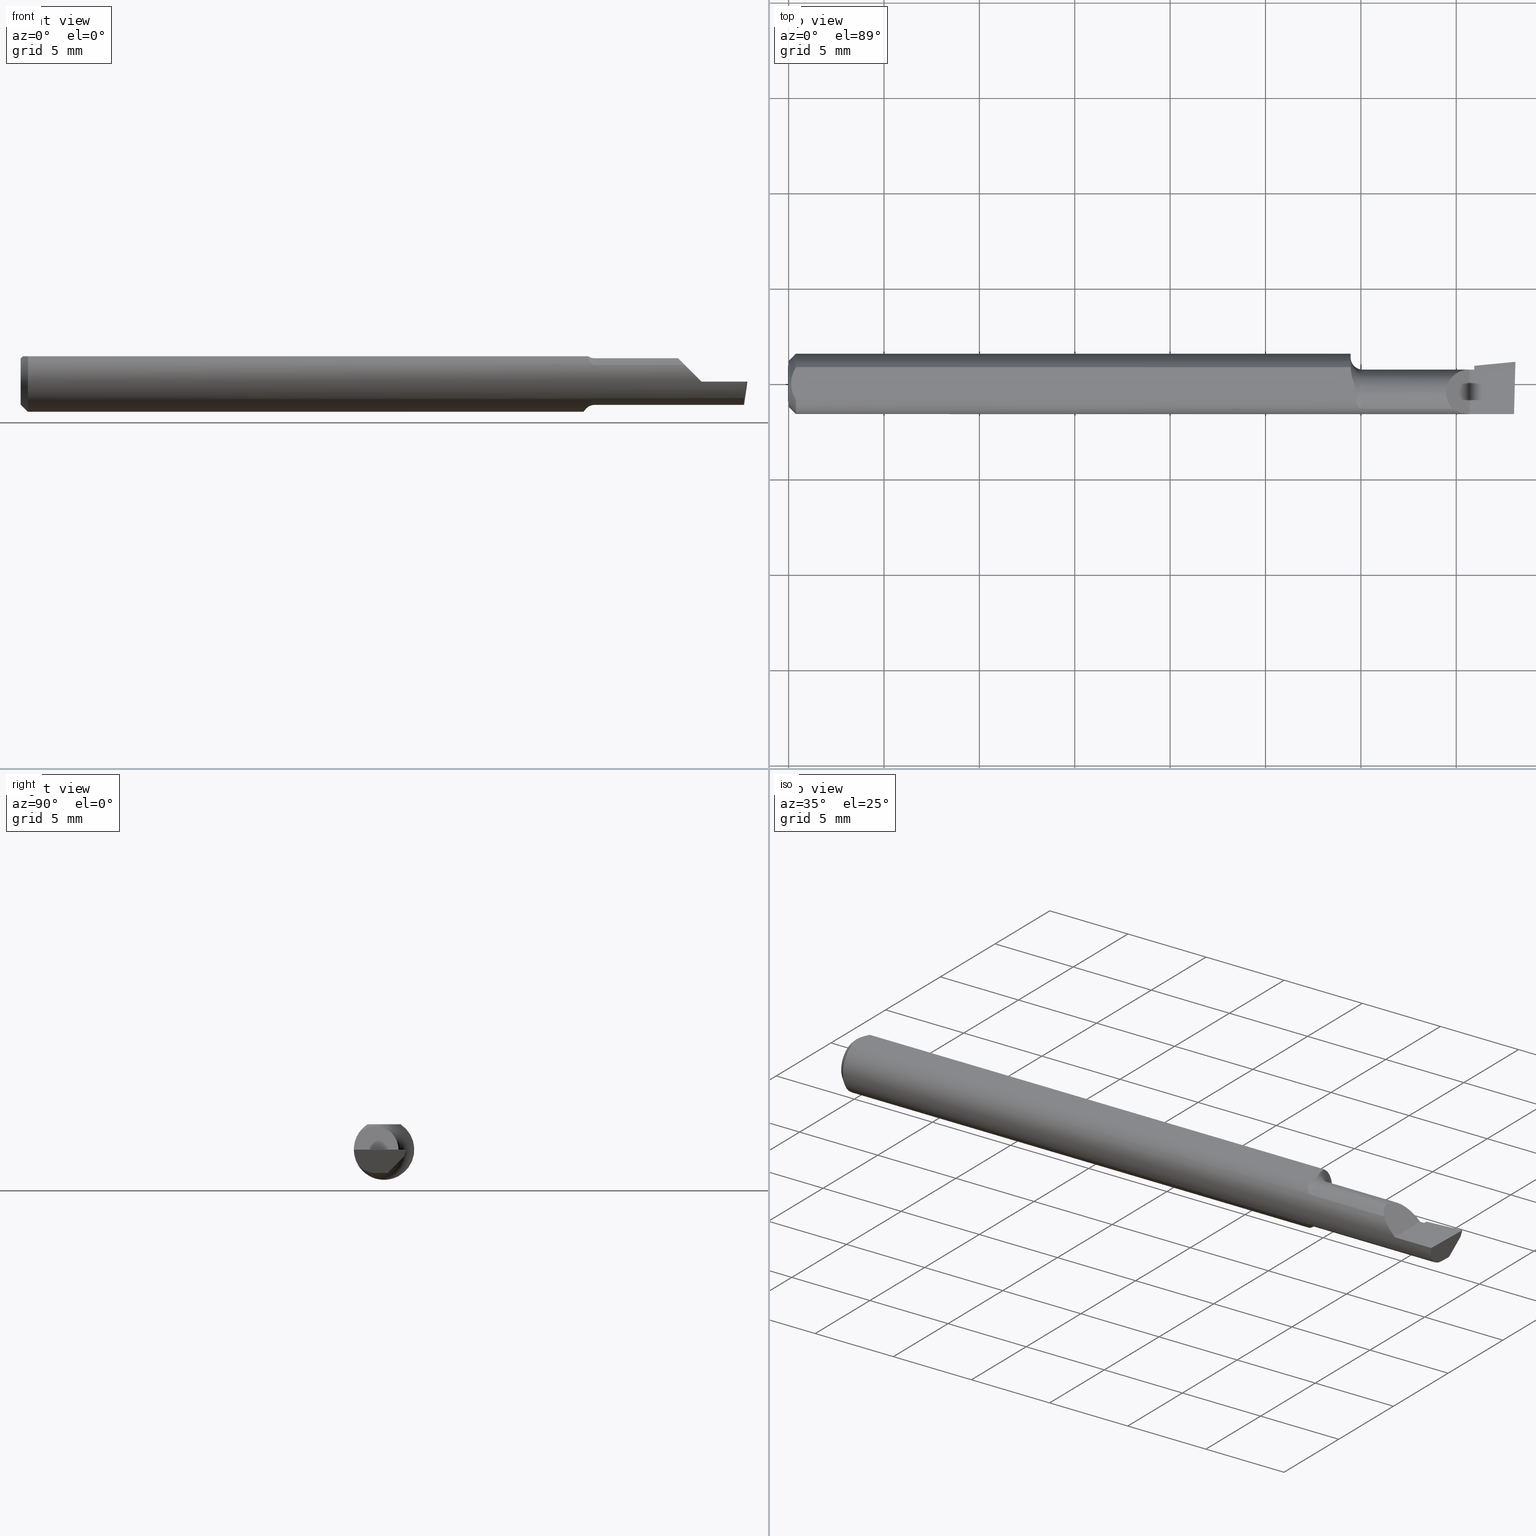
[diagram: canonical four-view strip — front | top / right | iso, engineering-drawing reading convention]
A machine part, canonical four-view strip (front | top / right | iso — engineering-drawing reading convention). The complete STEP part file that produces these views, byte-faithful:
ISO-10303-21;
HEADER;
FILE_DESCRIPTION (( 'STEP AP214' ),
    '1' );
FILE_NAME ('B110300.STEP',
    '2019-07-25T17:14:15',
    ( '' ),
    ( '' ),
    'SwSTEP 2.0',
    'SolidWorks 2018',
    '' );
FILE_SCHEMA (( 'AUTOMOTIVE_DESIGN' ));
ENDSEC;

DATA;
#1 = ORIENTED_EDGE ( 'NONE', *, *, #653, .F. ) ;
#2 = CARTESIAN_POINT ( 'NONE',  ( 1.356949999999999656, -0.03117368152160956279, 0.04804999999999998161 ) ) ;
#3 = AXIS2_PLACEMENT_3D ( 'NONE', #102, #655, #368 ) ;
#4 = DIRECTION ( 'NONE',  ( -1.000000000000000000, -0.0000000000000000000, -0.0000000000000000000 ) ) ;
#5 = CARTESIAN_POINT ( 'NONE',  ( 1.415000000000000036, 0.02964999999999999233, 1.836970198721026236E-16 ) ) ;
#6 = ADVANCED_FACE ( 'NONE', ( #499 ), #319, .F. ) ;
#7 = AXIS2_PLACEMENT_3D ( 'NONE', #164, #116, #564 ) ;
#8 = DIRECTION ( 'NONE',  ( -1.000000000000000000, -0.0000000000000000000, -0.0000000000000000000 ) ) ;
#9 = DIRECTION ( 'NONE',  ( -0.0000000000000000000, 1.000000000000000000, -0.0000000000000000000 ) ) ;
#10 = ORIENTED_EDGE ( 'NONE', *, *, #631, .T. ) ;
#11 = DIRECTION ( 'NONE',  ( 0.0000000000000000000, 0.2936076258024064023, 0.9559260233253795702 ) ) ;
#12 = CARTESIAN_POINT ( 'NONE',  ( 1.356949999999999656, 0.009747038327972771740, 0.04804999999999998855 ) ) ;
#13 = CARTESIAN_POINT ( 'NONE',  ( 1.405000000000000249, -0.06235000000000005121, 1.163414459189982046E-17 ) ) ;
#14 = AXIS2_PLACEMENT_3D ( 'NONE', #178, #71, #614 ) ;
#15 = CARTESIAN_POINT ( 'NONE',  ( 1.376852961672026865, 0.02964999999999998540, 0.02814703832797277663 ) ) ;
#16 = DIRECTION ( 'NONE',  ( 1.000000000000000000, 0.0000000000000000000, 0.0000000000000000000 ) ) ;
#17 = CARTESIAN_POINT ( 'NONE',  ( 1.162303760771541628, 0.01498942864105887868, 0.05235000000000000764 ) ) ;
#18 = VECTOR ( 'NONE', #322, 39.37007874015748854 ) ;
#19 = VERTEX_POINT ( 'NONE', #318 ) ;
#20 = EDGE_CURVE ( 'NONE', #173, #486, #41, .T. ) ;
#21 = DIRECTION ( 'NONE',  ( 0.0000000000000000000, 0.0000000000000000000, -1.000000000000000000 ) ) ;
#22 = CARTESIAN_POINT ( 'NONE',  ( 1.166444485955765664, 0.002321921504987352509, 0.05235000000000000070 ) ) ;
#23 = CARTESIAN_POINT ( 'NONE',  ( 1.500000000000000222, -0.01839999999999999969, -0.04804999999999998855 ) ) ;
#24 = CARTESIAN_POINT ( 'NONE',  ( 1.497451155291632086, 0.008070764392015403882, -0.04804999999999998855 ) ) ;
#25 = DIRECTION ( 'NONE',  ( 0.0000000000000000000, 1.000000000000000000, -7.598598113218357399E-17 ) ) ;
#26 = DIRECTION ( 'NONE',  ( -1.000000000000000000, -0.0000000000000000000, -0.0000000000000000000 ) ) ;
#27 = CIRCLE ( 'NONE', #7, 0.04804999999999996774 ) ;
#28 = EDGE_LOOP ( 'NONE', ( #114, #326, #510, #229, #200, #323 ) ) ;
#29 = ORIENTED_EDGE ( 'NONE', *, *, #402, .T. ) ;
#30 = AXIS2_PLACEMENT_3D ( 'NONE', #473, #199, #482 ) ;
#31 = CARTESIAN_POINT ( 'NONE',  ( 0.8348153170171558335, -0.01839999999999999969, 8.146162928567849885E-17 ) ) ;
#32 = CARTESIAN_POINT ( 'NONE',  ( 1.160000000000000142, 0.03386738844375224156, 0.05235000000000000070 ) ) ;
#33 = LINE ( 'NONE', #438, #597 ) ;
#34 = VERTEX_POINT ( 'NONE', #5 ) ;
#35 = DIRECTION ( 'NONE',  ( 0.0000000000000000000, 0.0000000000000000000, 1.000000000000000000 ) ) ;
#36 = PRODUCT_DEFINITION_FORMATION_WITH_SPECIFIED_SOURCE ( 'ANY', '', #285, .NOT_KNOWN. ) ;
#37 = CARTESIAN_POINT ( 'NONE',  ( 0.0000000000000000000, 0.03386738844375223462, 0.05234999999999997988 ) ) ;
#38 = DIRECTION ( 'NONE',  ( 0.0000000000000000000, 0.0000000000000000000, 1.000000000000000000 ) ) ;
#39 = FACE_OUTER_BOUND ( 'NONE', #55, .T. ) ;
#40 = DIRECTION ( 'NONE',  ( -0.9953961983671800740, -0.09584575252021031166, 0.0000000000000000000 ) ) ;
#41 = CIRCLE ( 'NONE', #629, 0.06235000000000000264 ) ;
#42 = ORIENTED_EDGE ( 'NONE', *, *, #87, .T. ) ;
#43 = DIRECTION ( 'NONE',  ( -0.0000000000000000000, 0.0000000000000000000, 1.000000000000000000 ) ) ;
#44 = EDGE_CURVE ( 'NONE', #56, #662, #343, .T. ) ;
#45 = CARTESIAN_POINT ( 'NONE',  ( 1.492086480543131533, -0.03117368152160946565, -0.04805000000000000243 ) ) ;
#46 = AXIS2_PLACEMENT_3D ( 'NONE', #167, #563, #508 ) ;
#47 = ORIENTED_EDGE ( 'NONE', *, *, #400, .T. ) ;
#48 = ORIENTED_EDGE ( 'NONE', *, *, #532, .F. ) ;
#49 = EDGE_CURVE ( 'NONE', #706, #258, #494, .T. ) ;
#50 = CARTESIAN_POINT ( 'NONE',  ( 0.01500000000000000465, 0.0000000000000000000, -0.06235000000000000264 ) ) ;
#51 = ADVANCED_FACE ( 'NONE', ( #313 ), #434, .T. ) ;
#52 = CARTESIAN_POINT ( 'NONE',  ( 1.163943527499067265, -0.01839999999999995112, -0.05957316929625284391 ) ) ;
#53 = FACE_OUTER_BOUND ( 'NONE', #99, .T. ) ;
#54 = DIRECTION ( 'NONE',  ( -1.000000000000000000, 0.0000000000000000000, -0.0000000000000000000 ) ) ;
#55 = EDGE_LOOP ( 'NONE', ( #469, #531, #608, #291 ) ) ;
#56 = VERTEX_POINT ( 'NONE', #441 ) ;
#57 = CARTESIAN_POINT ( 'NONE',  ( 1.356949999999999878, -0.01839999999999999969, 0.04804999999999998161 ) ) ;
#58 = ADVANCED_FACE ( 'NONE', ( #591 ), #110, .T. ) ;
#59 = CARTESIAN_POINT ( 'NONE',  ( 0.004999999999989931769, 7.898418181085889318E-16, 0.05235000000000000070 ) ) ;
#60 = B_SPLINE_CURVE_WITH_KNOTS ( 'NONE', 3,
 ( #541, #86, #195, #139, #642, #85 ),
 .UNSPECIFIED., .F., .F.,
 ( 4, 2, 4 ),
 ( 0.002133667072902290657, 0.002585433046183636171, 0.003037199019464981685 ),
 .UNSPECIFIED. ) ;
#61 = ADVANCED_FACE ( 'NONE', ( #260 ), #511, .F. ) ;
#62 = CARTESIAN_POINT ( 'NONE',  ( 0.01500000000000000465, 0.0000000000000000000, -0.06235000000000000264 ) ) ;
#63 = CARTESIAN_POINT ( 'NONE',  ( 1.356949999999999878, -0.01839999999999999969, 0.04804999999999998161 ) ) ;
#64 = FACE_OUTER_BOUND ( 'NONE', #348, .T. ) ;
#65 = DIRECTION ( 'NONE',  ( 0.02617694830787629934, 0.9996573249755572599, -3.158139334224184651E-18 ) ) ;
#66 = B_SPLINE_CURVE_WITH_KNOTS ( 'NONE', 3,
 ( #222, #232, #276, #448, #228, #286 ),
 .UNSPECIFIED., .F., .F.,
 ( 4, 2, 4 ),
 ( 0.003037199019464981685, 0.003488061124369676216, 0.003938923229274370746 ),
 .UNSPECIFIED. ) ;
#67 = CARTESIAN_POINT ( 'NONE',  ( 1.405000000000000249, 0.02964999999999991601, 1.163414459189982046E-17 ) ) ;
#68 = ORIENTED_EDGE ( 'NONE', *, *, #562, .F. ) ;
#69 = EDGE_LOOP ( 'NONE', ( #683, #397, #644, #487, #325, #192, #713 ) ) ;
#70 = ORIENTED_EDGE ( 'NONE', *, *, #149, .T. ) ;
#71 = DIRECTION ( 'NONE',  ( -1.000000000000000000, -0.0000000000000000000, -0.0000000000000000000 ) ) ;
#72 = PLANE ( 'NONE',  #95 ) ;
#73 = FILL_AREA_STYLE_COLOUR ( '', #440 ) ;
#74 = DIRECTION ( 'NONE',  ( 0.0000000000000000000, 0.0000000000000000000, 1.000000000000000000 ) ) ;
#75 = VECTOR ( 'NONE', #9, 39.37007874015748143 ) ;
#76 = ORIENTED_EDGE ( 'NONE', *, *, #196, .F. ) ;
#77 = EDGE_CURVE ( 'NONE', #578, #298, #33, .T. ) ;
#78 = B_SPLINE_CURVE_WITH_KNOTS ( 'NONE', 3,
 ( #536, #587, #540, #259, #304, #590, #646, #421, #207, #707, #94, #375 ),
 .UNSPECIFIED., .F., .F.,
 ( 4, 2, 2, 2, 2, 4 ),
 ( 1.968188672663559203E-07, 0.0001598826679621257948, 0.0003195685170569852272, 0.0006389402152466985623, 0.0009583119134364120060, 0.001277683611626125341 ),
 .UNSPECIFIED. ) ;
#79 = EDGE_CURVE ( 'NONE', #662, #507, #27, .T. ) ;
#80 =( NAMED_UNIT ( * ) PLANE_ANGLE_UNIT ( ) SI_UNIT ( $, .RADIAN. ) );
#81 = CARTESIAN_POINT ( 'NONE',  ( 1.160000000000000142, -0.01839999999999999969, 0.0000000000000000000 ) ) ;
#82 = ORIENTED_EDGE ( 'NONE', *, *, #175, .F. ) ;
#83 = STYLED_ITEM ( 'NONE', ( #696 ), #223 ) ;
#84 =( NAMED_UNIT ( * ) SI_UNIT ( $, .STERADIAN. ) SOLID_ANGLE_UNIT ( ) );
#85 = CARTESIAN_POINT ( 'NONE',  ( 0.004999999999989931769, 7.898418181085889318E-16, 0.05235000000000000070 ) ) ;
#86 = CARTESIAN_POINT ( 'NONE',  ( 0.01216137397042175820, -0.02864146636719541034, 0.05235000000000000070 ) ) ;
#87 = EDGE_CURVE ( 'NONE', #578, #586, #364, .T. ) ;
#88 = FACE_OUTER_BOUND ( 'NONE', #605, .T. ) ;
#89 = LINE ( 'NONE', #574, #408 ) ;
#90 = EDGE_LOOP ( 'NONE', ( #570, #42, #624, #425, #345, #496 ) ) ;
#91 = DIRECTION ( 'NONE',  ( -1.000000000000000000, -0.0000000000000000000, -0.0000000000000000000 ) ) ;
#92 = EDGE_LOOP ( 'NONE', ( #29, #10 ) ) ;
#93 = DIRECTION ( 'NONE',  ( 0.0000000000000000000, 0.0000000000000000000, -1.000000000000000000 ) ) ;
#94 = CARTESIAN_POINT ( 'NONE',  ( 1.164710485888420743, -0.02227973916747846492, -0.05837485801745209008 ) ) ;
#95 = AXIS2_PLACEMENT_3D ( 'NONE', #278, #16, #21 ) ;
#96 = FACE_OUTER_BOUND ( 'NONE', #396, .T. ) ;
#97 = CIRCLE ( 'NONE', #208, 0.06235000000000000264 ) ;
#98 = UNCERTAINTY_MEASURE_WITH_UNIT (LENGTH_MEASURE( 1.000000000000000082E-05 ), #627, 'distance_accuracy_value', 'NONE');
#99 = EDGE_LOOP ( 'NONE', ( #272, #616, #669, #109 ) ) ;
#100 = CARTESIAN_POINT ( 'NONE',  ( 1.493233423732482024, -0.05210000000000004211, -0.03425072991922938764 ) ) ;
#101 = AXIS2_PLACEMENT_3D ( 'NONE', #341, #168, #395 ) ;
#102 = CARTESIAN_POINT ( 'NONE',  ( 0.0000000000000000000, 0.0000000000000000000, 0.0000000000000000000 ) ) ;
#103 = DIRECTION ( 'NONE',  ( -0.0000000000000000000, 0.0000000000000000000, 1.000000000000000000 ) ) ;
#104 = CARTESIAN_POINT ( 'NONE',  ( 1.492371467082626024, -0.04299473640227066684, -0.04320958667840190531 ) ) ;
#105 = FACE_OUTER_BOUND ( 'NONE', #432, .T. ) ;
#106 = FACE_OUTER_BOUND ( 'NONE', #69, .T. ) ;
#107 = ORIENTED_EDGE ( 'NONE', *, *, #709, .F. ) ;
#108 = ADVANCED_FACE ( 'NONE', ( #237 ), #413, .F. ) ;
#109 = ORIENTED_EDGE ( 'NONE', *, *, #484, .T. ) ;
#110 = PLANE ( 'NONE',  #426 ) ;
#111 = EDGE_CURVE ( 'NONE', #298, #132, #297, .T. ) ;
#112 = PLANE ( 'NONE',  #151 ) ;
#113 = CARTESIAN_POINT ( 'NONE',  ( 1.160000000000000142, 0.03254879782683785944, 0.05235000000000000070 ) ) ;
#114 = ORIENTED_EDGE ( 'NONE', *, *, #270, .F. ) ;
#115 = ORIENTED_EDGE ( 'NONE', *, *, #79, .F. ) ;
#116 = DIRECTION ( 'NONE',  ( -1.000000000000000000, -0.0000000000000000000, -0.0000000000000000000 ) ) ;
#117 = DIRECTION ( 'NONE',  ( 2.429359850419095176E-34, 4.268512490100411895E-17, 1.000000000000000000 ) ) ;
#118 = AXIS2_PLACEMENT_3D ( 'NONE', #273, #157, #433 ) ;
#119 = DIRECTION ( 'NONE',  ( 0.1053106618241842901, 0.6976485211320170299, 0.7086580314005210823 ) ) ;
#120 = CARTESIAN_POINT ( 'NONE',  ( 0.01500000000000185039, -0.03386738844380016850, 0.05235000000000000070 ) ) ;
#121 = EDGE_CURVE ( 'NONE', #258, #34, #145, .T. ) ;
#122 = CARTESIAN_POINT ( 'NONE',  ( 1.415000000000000036, 0.03746543090320910568, 0.0000000000000000000 ) ) ;
#123 = CYLINDRICAL_SURFACE ( 'NONE', #30, 0.04804999999999998161 ) ;
#124 = EDGE_CURVE ( 'NONE', #633, #579, #174, .T. ) ;
#125 = CARTESIAN_POINT ( 'NONE',  ( 1.493233423732482024, -0.05210000000000004211, -0.03425072991922938764 ) ) ;
#126 = COLOUR_RGB ( '',0.7529411764705882248, 0.7529411764705882248, 0.7529411764705882248 ) ;
#127 = ORIENTED_EDGE ( 'NONE', *, *, #542, .T. ) ;
#128 = VERTEX_POINT ( 'NONE', #63 ) ;
#129 = CARTESIAN_POINT ( 'NONE',  ( 1.500000000000000222, 0.1123499999999999915, 0.05234999999999998682 ) ) ;
#130 = DIRECTION ( 'NONE',  ( 0.0000000000000000000, 0.0000000000000000000, -1.000000000000000000 ) ) ;
#131 = LINE ( 'NONE', #678, #362 ) ;
#132 = VERTEX_POINT ( 'NONE', #619 ) ;
#133 = B_SPLINE_CURVE_WITH_KNOTS ( 'NONE', 3,
 ( #52, #392, #165, #672, #330, #377 ),
 .UNSPECIFIED., .F., .F.,
 ( 4, 2, 4 ),
 ( 0.001277683611626125341, 0.001926233481642335241, 0.002574783351658545359 ),
 .UNSPECIFIED. ) ;
#134 = DIRECTION ( 'NONE',  ( 0.0000000000000000000, -0.2936076258024064023, -0.9559260233253795702 ) ) ;
#135 = FACE_OUTER_BOUND ( 'NONE', #419, .T. ) ;
#136 = CARTESIAN_POINT ( 'NONE',  ( 1.415000000000000036, 0.007456147106387211315, -0.04050015008383134330 ) ) ;
#137 = EDGE_CURVE ( 'NONE', #545, #173, #66, .T. ) ;
#138 = TOROIDAL_SURFACE ( 'NONE', #575, 0.07304999999999997606, 0.02500000000000000486 ) ;
#139 = CARTESIAN_POINT ( 'NONE',  ( 0.006057557792978140489, -0.01187252718384441616, 0.05234999999999998682 ) ) ;
#140 = LENGTH_MEASURE_WITH_UNIT ( LENGTH_MEASURE( 0.02539999999999999897 ), #454 );
#141 = ORIENTED_EDGE ( 'NONE', *, *, #196, .T. ) ;
#142 = ORIENTED_EDGE ( 'NONE', *, *, #233, .F. ) ;
#143 = EDGE_LOOP ( 'NONE', ( #219, #308, #206 ) ) ;
#144 = CARTESIAN_POINT ( 'NONE',  ( 1.170981797547136827, -0.01840000000000274055, 0.05235000000000000070 ) ) ;
#145 = LINE ( 'NONE', #337, #153 ) ;
#146 = CARTESIAN_POINT ( 'NONE',  ( 1.361790413321597892, -0.04299473640227081950, 0.04320958667840184286 ) ) ;
#147 = VERTEX_POINT ( 'NONE', #406 ) ;
#148 = MANIFOLD_SOLID_BREP ( 'Extrude7', #551 ) ;
#149 = EDGE_CURVE ( 'NONE', #128, #258, #383, .T. ) ;
#150 = CARTESIAN_POINT ( 'NONE',  ( 1.493233423732482024, -0.05210000000000004211, -0.03425072991922938764 ) ) ;
#151 = AXIS2_PLACEMENT_3D ( 'NONE', #226, #328, #11 ) ;
#152 = LINE ( 'NONE', #242, #279 ) ;
#153 = VECTOR ( 'NONE', #332, 39.37007874015748143 ) ;
#154 = ORIENTED_EDGE ( 'NONE', *, *, #111, .F. ) ;
#155 = ORIENTED_EDGE ( 'NONE', *, *, #402, .F. ) ;
#156 = DIRECTION ( 'NONE',  ( 0.1219104985252838363, 0.0000000000000000000, 0.9925410975618675913 ) ) ;
#157 = DIRECTION ( 'NONE',  ( -1.000000000000000000, -0.0000000000000000000, -0.0000000000000000000 ) ) ;
#158 = EDGE_CURVE ( 'NONE', #486, #684, #697, .T. ) ;
#159 = DIRECTION ( 'NONE',  ( 1.000000000000000000, 0.0000000000000000000, 0.0000000000000000000 ) ) ;
#160 = VECTOR ( 'NONE', #623, 39.37007874015748854 ) ;
#161 = CARTESIAN_POINT ( 'NONE',  ( 1.185000000000000275, -0.01839999999999999969, 0.0000000000000000000 ) ) ;
#162 = EDGE_LOOP ( 'NONE', ( #650, #714, #170, #600, #660, #181 ) ) ;
#163 = EDGE_LOOP ( 'NONE', ( #577, #521, #411, #506, #115 ) ) ;
#164 = CARTESIAN_POINT ( 'NONE',  ( 1.185000000000000275, -0.01839999999999999969, 0.0000000000000000000 ) ) ;
#165 = CARTESIAN_POINT ( 'NONE',  ( 1.161396250014341991, -0.002002297547419283619, -0.06287403108402092600 ) ) ;
#166 = AXIS2_PLACEMENT_3D ( 'NONE', #415, #687, #576 ) ;
#167 = CARTESIAN_POINT ( 'NONE',  ( 1.405000000000000249, -0.2500000000000000555, 1.163414459189982046E-17 ) ) ;
#168 = DIRECTION ( 'NONE',  ( -1.224646799147350495E-16, 0.0000000000000000000, -1.000000000000000000 ) ) ;
#169 = ADVANCED_FACE ( 'NONE', ( #704 ), #550, .F. ) ;
#170 = ORIENTED_EDGE ( 'NONE', *, *, #77, .T. ) ;
#171 = CARTESIAN_POINT ( 'NONE',  ( 1.494315395341277553, -0.05883495956508440206, -0.02400594406595346966 ) ) ;
#172 = CARTESIAN_POINT ( 'NONE',  ( 1.170981797547482550, -0.01413225355780883645, 0.05235000000000000070 ) ) ;
#173 = VERTEX_POINT ( 'NONE', #344 ) ;
#174 = B_SPLINE_CURVE_WITH_KNOTS ( 'NONE', 3,
 ( #113, #236, #17, #452, #22, #450, #514, #503, #172, #559 ),
 .UNSPECIFIED., .F., .F.,
 ( 4, 2, 2, 2, 4 ),
 ( 0.008710904206567291266, 0.009350419755586248521, 0.009510298642840987401, 0.009670177530095726282, 0.009989935304605205776 ),
 .UNSPECIFIED. ) ;
#175 = EDGE_CURVE ( 'NONE', #633, #257, #689, .T. ) ;
#176 =( NAMED_UNIT ( * ) SI_UNIT ( $, .STERADIAN. ) SOLID_ANGLE_UNIT ( ) );
#177 = CARTESIAN_POINT ( 'NONE',  ( 1.185000000000000275, -0.01839999999999999969, 0.04804999999999996774 ) ) ;
#178 = CARTESIAN_POINT ( 'NONE',  ( 1.415000000000000036, -0.01839999999999999969, 0.0000000000000000000 ) ) ;
#179 = CONICAL_SURFACE ( 'NONE', #527, 0.06235000000000000264, 0.7853981633974594923 ) ;
#180 = CARTESIAN_POINT ( 'NONE',  ( 0.01500000000000000465, 0.0000000000000000000, 0.0000000000000000000 ) ) ;
#181 = ORIENTED_EDGE ( 'NONE', *, *, #634, .F. ) ;
#182 = ORIENTED_EDGE ( 'NONE', *, *, #562, .T. ) ;
#183 =( LENGTH_UNIT ( ) NAMED_UNIT ( * ) SI_UNIT ( $, .METRE. ) );
#184 = CARTESIAN_POINT ( 'NONE',  ( 1.185000000000000275, -0.01839999999999999275, -0.07304999999999997606 ) ) ;
#185 = AXIS2_PLACEMENT_3D ( 'NONE', #184, #625, #685 ) ;
#186 = FILL_AREA_STYLE_COLOUR ( '', #126 ) ;
#187 = DIRECTION ( 'NONE',  ( 0.0000000000000000000, 0.0000000000000000000, -1.000000000000000000 ) ) ;
#188 = DIRECTION ( 'NONE',  ( 0.9953961983671787417, 0.09584575252022461966, -1.219008768213806398E-16 ) ) ;
#189 = SURFACE_STYLE_FILL_AREA ( #251 ) ;
#190 = PRODUCT_CONTEXT ( 'NONE', #694, 'mechanical' ) ;
#191 = ORIENTED_EDGE ( 'NONE', *, *, #124, .T. ) ;
#192 = ORIENTED_EDGE ( 'NONE', *, *, #238, .F. ) ;
#193 = ORIENTED_EDGE ( 'NONE', *, *, #87, .F. ) ;
#194 = SURFACE_STYLE_USAGE ( .BOTH. , #533 ) ;
#195 = CARTESIAN_POINT ( 'NONE',  ( 0.009678036133109307534, -0.02325481837211496039, 0.05235000000000000070 ) ) ;
#196 = EDGE_CURVE ( 'NONE', #19, #662, #477, .T. ) ;
#197 = FACE_OUTER_BOUND ( 'NONE', #163, .T. ) ;
#198 = CIRCLE ( 'NONE', #626, 0.04805000000000000243 ) ;
#199 = DIRECTION ( 'NONE',  ( -1.000000000000000000, -0.0000000000000000000, -0.0000000000000000000 ) ) ;
#200 = ORIENTED_EDGE ( 'NONE', *, *, #121, .F. ) ;
#201 = PRODUCT_DEFINITION_SHAPE ( 'NONE', 'NONE',  #566 ) ;
#202 = CARTESIAN_POINT ( 'NONE',  ( 1.510364203804933414, 0.04234793331252795917, -0.01399999999999999856 ) ) ;
#203 = CARTESIAN_POINT ( 'NONE',  ( 1.492426164563412261, -0.01820167213927955871, -0.04804999999999998855 ) ) ;
#204 = DIRECTION ( 'NONE',  ( -0.02617694830787629587, -0.9996573249755572599, 4.246274422243600449E-17 ) ) ;
#205 = VECTOR ( 'NONE', #428, 39.37007874015748143 ) ;
#206 = ORIENTED_EDGE ( 'NONE', *, *, #175, .T. ) ;
#207 = CARTESIAN_POINT ( 'NONE',  ( 1.167774730512701309, -0.03308328010062948354, -0.05299899880320901174 ) ) ;
#208 = AXIS2_PLACEMENT_3D ( 'NONE', #254, #252, #93 ) ;
#209 = EDGE_CURVE ( 'NONE', #147, #132, #321, .T. ) ;
#210 = CARTESIAN_POINT ( 'NONE',  ( 1.176602410087811634, -0.04843664215652591920, 0.03931692004732160323 ) ) ;
#211 = DIRECTION ( 'NONE',  ( -1.000000000000000000, -0.0000000000000000000, -0.0000000000000000000 ) ) ;
#212 = ADVANCED_FACE ( 'NONE', ( #544 ), #179, .T. ) ;
#213 = CARTESIAN_POINT ( 'NONE',  ( 0.0000000000000000000, -0.01839999999999999275, -0.04804999999999998161 ) ) ;
#214 = CARTESIAN_POINT ( 'NONE',  ( 1.415000000000000036, 0.0001316211261978388330, -0.04804999999999998855 ) ) ;
#215 = LINE ( 'NONE', #202, #643 ) ;
#216 = VERTEX_POINT ( 'NONE', #32 ) ;
#217 = ADVANCED_FACE ( 'NONE', ( #658 ), #467, .T. ) ;
#218 = DIRECTION ( 'NONE',  ( 0.0000000000000000000, 0.0000000000000000000, -1.000000000000000000 ) ) ;
#219 = ORIENTED_EDGE ( 'NONE', *, *, #302, .T. ) ;
#220 = DIRECTION ( 'NONE',  ( 0.0000000000000000000, 0.0000000000000000000, -1.000000000000000000 ) ) ;
#221 = DIMENSIONAL_EXPONENTS ( 1.000000000000000000, 0.0000000000000000000, 0.0000000000000000000, 0.0000000000000000000, 0.0000000000000000000, 0.0000000000000000000, 0.0000000000000000000 ) ;
#222 = CARTESIAN_POINT ( 'NONE',  ( 0.004999999999989931769, 7.898418181085889318E-16, 0.05235000000000000070 ) ) ;
#223 = ADVANCED_BREP_SHAPE_REPRESENTATION ( 'B110300', ( #148, #703 ), #394 ) ;
#224 = VECTOR ( 'NONE', #417, 39.37007874015748143 ) ;
#225 = EDGE_CURVE ( 'NONE', #56, #586, #89, .T. ) ;
#226 = CARTESIAN_POINT ( 'NONE',  ( 1.509953961983672377, 0.04660845752520206831, 0.0000000000000000000 ) ) ;
#227 = VERTEX_POINT ( 'NONE', #294 ) ;
#228 = CARTESIAN_POINT ( 'NONE',  ( 0.01218518006020415795, 0.02868529347538067639, 0.05235000000000000070 ) ) ;
#229 = ORIENTED_EDGE ( 'NONE', *, *, #699, .F. ) ;
#230 = DIRECTION ( 'NONE',  ( -1.000000000000000000, 5.691349986800549142E-18, -0.0000000000000000000 ) ) ;
#231 = DIRECTION ( 'NONE',  ( -0.9953961983671800740, -0.09584575252021028391, 2.116984158397001727E-18 ) ) ;
#232 = CARTESIAN_POINT ( 'NONE',  ( 0.004999999999999268051, 0.005945714695019511074, 0.05235000000000000070 ) ) ;
#233 = EDGE_CURVE ( 'NONE', #128, #247, #537, .T. ) ;
#234 = CARTESIAN_POINT ( 'NONE',  ( 0.0000000000000000000, 0.0000000000000000000, 0.0000000000000000000 ) ) ;
#235 = CIRCLE ( 'NONE', #3, 0.04734999999999965625 ) ;
#236 = CARTESIAN_POINT ( 'NONE',  ( 1.159999999999999254, 0.02370330699131464880, 0.05234999999999997988 ) ) ;
#237 = FACE_OUTER_BOUND ( 'NONE', #92, .T. ) ;
#238 = EDGE_CURVE ( 'NONE', #356, #684, #582, .T. ) ;
#239 = ORIENTED_EDGE ( 'NONE', *, *, #472, .T. ) ;
#240 = DIRECTION ( 'NONE',  ( 0.0000000000000000000, 1.000000000000000000, -4.268512490100410663E-17 ) ) ;
#241 = B_SPLINE_CURVE_WITH_KNOTS ( 'NONE', 3,
 ( #144, #471, #360, #474, #695, #645 ),
 .UNSPECIFIED., .F., .F.,
 ( 4, 2, 4 ),
 ( 0.0004198066361325443713, 0.0006196367099741925157, 0.0008194667838158407143 ),
 .UNSPECIFIED. ) ;
#242 = CARTESIAN_POINT ( 'NONE',  ( 2.249639673992775738E-32, -0.06234999999999999570, 1.836970198721025250E-16 ) ) ;
#243 = DIRECTION ( 'NONE',  ( 0.0000000000000000000, 0.0000000000000000000, 1.000000000000000000 ) ) ;
#244 = LINE ( 'NONE', #398, #407 ) ;
#245 = TOROIDAL_SURFACE ( 'NONE', #118, 0.07304999999999997606, 0.02500000000000000486 ) ;
#246 = CARTESIAN_POINT ( 'NONE',  ( 1.160000000000000142, 0.03016902173913034446, -0.05456512281030696798 ) ) ;
#247 = VERTEX_POINT ( 'NONE', #177 ) ;
#248 = ORIENTED_EDGE ( 'NONE', *, *, #20, .T. ) ;
#249 = ORIENTED_EDGE ( 'NONE', *, *, #449, .F. ) ;
#250 = CARTESIAN_POINT ( 'NONE',  ( 1.498163195397632652, 0.04117310982593896940, -0.01399999999999999856 ) ) ;
#251 = FILL_AREA_STYLE ('',( #186 ) ) ;
#252 = DIRECTION ( 'NONE',  ( 1.000000000000000000, 0.0000000000000000000, 0.0000000000000000000 ) ) ;
#253 = CARTESIAN_POINT ( 'NONE',  ( 1.185000000000000275, -0.01839999999999999969, 0.07304999999999997606 ) ) ;
#254 = CARTESIAN_POINT ( 'NONE',  ( 1.160000000000000142, 0.0000000000000000000, 0.0000000000000000000 ) ) ;
#255 = CIRCLE ( 'NONE', #357, 0.04734999999999965625 ) ;
#256 = LENGTH_MEASURE_WITH_UNIT ( LENGTH_MEASURE( 0.02539999999999999897 ), #183 );
#257 = VERTEX_POINT ( 'NONE', #246 ) ;
#258 = VERTEX_POINT ( 'NONE', #525 ) ;
#259 = CARTESIAN_POINT ( 'NONE',  ( 1.178063614445013840, -0.04963912592730899270, -0.03775824298307042803 ) ) ;
#260 = FACE_OUTER_BOUND ( 'NONE', #28, .T. ) ;
#261 = EDGE_CURVE ( 'NONE', #147, #478, #596, .T. ) ;
#262 = VERTEX_POINT ( 'NONE', #136 ) ;
#263 = ORIENTED_EDGE ( 'NONE', *, *, #49, .T. ) ;
#264 = VECTOR ( 'NONE', #552, 39.37007874015748143 ) ;
#265 = CARTESIAN_POINT ( 'NONE',  ( 1.492420971165606458, -0.01839999999999999969, -0.04804999999999998855 ) ) ;
#266 = CARTESIAN_POINT ( 'NONE',  ( 1.179178979635574942, -0.05033758282015989710, 0.03680695256572117519 ) ) ;
#267 = VECTOR ( 'NONE', #134, 39.37007874015748143 ) ;
#268 = ADVANCED_FACE ( 'NONE', ( #431 ), #516, .T. ) ;
#269 = VECTOR ( 'NONE', #231, 39.37007874015748854 ) ;
#270 = EDGE_CURVE ( 'NONE', #670, #706, #152, .T. ) ;
#271 = ORIENTED_EDGE ( 'NONE', *, *, #158, .F. ) ;
#272 = ORIENTED_EDGE ( 'NONE', *, *, #708, .F. ) ;
#273 = CARTESIAN_POINT ( 'NONE',  ( 1.185000000000000275, -0.01839999999999999969, 0.0000000000000000000 ) ) ;
#274 = LINE ( 'NONE', #338, #390 ) ;
#275 = AXIS2_PLACEMENT_3D ( 'NONE', #666, #8, #444 ) ;
#276 = CARTESIAN_POINT ( 'NONE',  ( 0.006064493299689842180, 0.01189382783781397189, 0.05235000000000000070 ) ) ;
#277 = DIRECTION ( 'NONE',  ( -1.000000000000000000, -0.0000000000000000000, -0.0000000000000000000 ) ) ;
#278 = CARTESIAN_POINT ( 'NONE',  ( 0.0000000000000000000, 0.0000000000000000000, 0.0000000000000000000 ) ) ;
#279 = VECTOR ( 'NONE', #26, 39.37007874015748143 ) ;
#280 = PLANE ( 'NONE',  #693 ) ;
#281 = DIRECTION ( 'NONE',  ( -1.000000000000000000, 0.0000000000000000000, -0.0000000000000000000 ) ) ;
#282 = ORIENTED_EDGE ( 'NONE', *, *, #79, .T. ) ;
#283 = ORIENTED_EDGE ( 'NONE', *, *, #316, .T. ) ;
#284 = CARTESIAN_POINT ( 'NONE',  ( 1.415000000000000036, 0.01335851473338077466, -0.03441620828959359585 ) ) ;
#285 = PRODUCT ( 'B110300', 'B110300', '', ( #190 ) ) ;
#286 = CARTESIAN_POINT ( 'NONE',  ( 0.01500000000000000465, 0.03386738844375223462, 0.05234999999999997988 ) ) ;
#287 = CARTESIAN_POINT ( 'NONE',  ( 1.185000000000000275, -0.01839999999999999969, 0.0000000000000000000 ) ) ;
#288 = AXIS2_PLACEMENT_3D ( 'NONE', #253, #352, #130 ) ;
#289 = DIRECTION ( 'NONE',  ( 1.000000000000000000, 0.0000000000000000000, 0.0000000000000000000 ) ) ;
#290 = SURFACE_STYLE_FILL_AREA ( #617 ) ;
#291 = ORIENTED_EDGE ( 'NONE', *, *, #675, .F. ) ;
#292 = DIRECTION ( 'NONE',  ( 1.000000000000000000, 0.0000000000000000000, 0.0000000000000000000 ) ) ;
#293 = ORIENTED_EDGE ( 'NONE', *, *, #675, .T. ) ;
#294 = CARTESIAN_POINT ( 'NONE',  ( 0.0000000000000000000, 6.717187693324806899E-18, 0.04734999999999965625 ) ) ;
#295 = CARTESIAN_POINT ( 'NONE',  ( 0.0000000000000000000, -0.03386738844375222768, 0.05234999999999997988 ) ) ;
#296 = CARTESIAN_POINT ( 'NONE',  ( 1.185000000000000275, -0.01839999999999999969, 0.0000000000000000000 ) ) ;
#297 = LINE ( 'NONE', #515, #711 ) ;
#298 = VERTEX_POINT ( 'NONE', #250 ) ;
#299 =( NAMED_UNIT ( * ) PLANE_ANGLE_UNIT ( ) SI_UNIT ( $, .RADIAN. ) );
#300 = VERTEX_POINT ( 'NONE', #363 ) ;
#301 = CARTESIAN_POINT ( 'NONE',  ( 1.415000000000000036, 0.02286474879319039949, -0.02461753454420021262 ) ) ;
#302 = EDGE_CURVE ( 'NONE', #257, #216, #97, .T. ) ;
#303 = DIRECTION ( 'NONE',  ( 0.0000000000000000000, 0.0000000000000000000, 1.000000000000000000 ) ) ;
#304 = CARTESIAN_POINT ( 'NONE',  ( 1.176855754336165738, -0.04856891343705587588, -0.03913748562448261109 ) ) ;
#305 = LINE ( 'NONE', #23, #458 ) ;
#306 = ORIENTED_EDGE ( 'NONE', *, *, #327, .T. ) ;
#307 = CARTESIAN_POINT ( 'NONE',  ( 1.168143989668697369, -0.03386738844377055330, 0.05235000000000000070 ) ) ;
#308 = ORIENTED_EDGE ( 'NONE', *, *, #606, .T. ) ;
#309 = DIRECTION ( 'NONE',  ( -1.000000000000000000, 0.0000000000000000000, -0.0000000000000000000 ) ) ;
#310 = CARTESIAN_POINT ( 'NONE',  ( 1.171579710012544684, -0.04200879032723220385, 0.04631940421101470723 ) ) ;
#311 = LINE ( 'NONE', #203, #604 ) ;
#312 = PRESENTATION_LAYER_ASSIGNMENT (  '', '', ( #347 ) ) ;
#313 = FACE_OUTER_BOUND ( 'NONE', #701, .T. ) ;
#314 = ORIENTED_EDGE ( 'NONE', *, *, #158, .T. ) ;
#315 = CARTESIAN_POINT ( 'NONE',  ( 1.182325466551640281, -0.05179156103573015479, 0.03472422648579320814 ) ) ;
#316 = EDGE_CURVE ( 'NONE', #227, #409, #255, .T. ) ;
#317 = PLANE ( 'NONE',  #639 ) ;
#318 = CARTESIAN_POINT ( 'NONE',  ( 1.163943527499067265, -0.01839999999999995112, -0.05957316929625284391 ) ) ;
#319 = PLANE ( 'NONE',  #481 ) ;
#320 = LENGTH_MEASURE_WITH_UNIT ( LENGTH_MEASURE( 0.02539999999999999897 ), #636 );
#321 = LINE ( 'NONE', #31, #557 ) ;
#322 = DIRECTION ( 'NONE',  ( 0.0000000000000000000, -0.6963153109074925462, -0.7177360153954948085 ) ) ;
#323 = ORIENTED_EDGE ( 'NONE', *, *, #49, .F. ) ;
#324 = ADVANCED_FACE ( 'NONE', ( #526 ), #710, .T. ) ;
#325 = ORIENTED_EDGE ( 'NONE', *, *, #400, .F. ) ;
#326 = ORIENTED_EDGE ( 'NONE', *, *, #702, .T. ) ;
#327 = EDGE_CURVE ( 'NONE', #298, #478, #215, .T. ) ;
#328 = DIRECTION ( 'NONE',  ( -0.09165774897393340337, 0.9519021185660613282, -0.2923717047227306631 ) ) ;
#329 =( NAMED_UNIT ( * ) PLANE_ANGLE_UNIT ( ) SI_UNIT ( $, .RADIAN. ) );
#330 = CARTESIAN_POINT ( 'NONE',  ( 1.160000000000000142, 0.02282614954852009090, -0.05862499217990969208 ) ) ;
#331 = CIRCLE ( 'NONE', #275, 0.04804999999999996774 ) ;
#332 = DIRECTION ( 'NONE',  ( 1.000000000000000000, 0.0000000000000000000, 0.0000000000000000000 ) ) ;
#333 = ORIENTED_EDGE ( 'NONE', *, *, #121, .T. ) ;
#334 = DIRECTION ( 'NONE',  ( 0.0000000000000000000, -1.000000000000000000, 4.268512490100411895E-17 ) ) ;
#335 = VERTEX_POINT ( 'NONE', #301 ) ;
#336 = AXIS2_PLACEMENT_3D ( 'NONE', #680, #117, #334 ) ;
#337 = CARTESIAN_POINT ( 'NONE',  ( 2.249639673992775738E-32, 0.02964999999999997499, 1.836970198721025250E-16 ) ) ;
#338 = CARTESIAN_POINT ( 'NONE',  ( 1.415000000000000036, 0.01335851473338077466, -0.03441620828959359585 ) ) ;
#339 = CARTESIAN_POINT ( 'NONE',  ( 1.356949999999999878, -0.01839999999999999969, 0.04804999999999998161 ) ) ;
#340 = CARTESIAN_POINT ( 'NONE',  ( 1.492420971165606458, -0.01839999999999999969, -0.04804999999999998855 ) ) ;
#341 = CARTESIAN_POINT ( 'NONE',  ( 1.500000000000000222, -0.2500000000000000555, 0.0000000000000000000 ) ) ;
#342 = DIRECTION ( 'NONE',  ( 0.0000000000000000000, -0.6963153109074925462, -0.7177360153954948085 ) ) ;
#343 = LINE ( 'NONE', #213, #567 ) ;
#344 = CARTESIAN_POINT ( 'NONE',  ( 0.01500000000000000465, 0.03386738844375223462, 0.05234999999999997988 ) ) ;
#345 = ORIENTED_EDGE ( 'NONE', *, *, #601, .F. ) ;
#346 = ORIENTED_EDGE ( 'NONE', *, *, #412, .T. ) ;
#347 = STYLED_ITEM ( 'NONE', ( #584 ), #148 ) ;
#348 = EDGE_LOOP ( 'NONE', ( #366, #372, #593, #142, #70, #333, #293, #155 ) ) ;
#349 = APPLICATION_PROTOCOL_DEFINITION ( 'draft international standard', 'automotive_design', 1998, #358 ) ;
#350 = DIRECTION ( 'NONE',  ( -1.000000000000000000, -0.0000000000000000000, -0.0000000000000000000 ) ) ;
#351 = DIRECTION ( 'NONE',  ( -1.000000000000000000, -0.0000000000000000000, -0.0000000000000000000 ) ) ;
#352 = DIRECTION ( 'NONE',  ( 0.0000000000000000000, -1.000000000000000000, 0.0000000000000000000 ) ) ;
#353 = CARTESIAN_POINT ( 'NONE',  ( 0.0000000000000000000, -0.01839999999999999969, 0.04804999999999998161 ) ) ;
#354 = CIRCLE ( 'NONE', #512, 0.04804999999999998161 ) ;
#355 = ORIENTED_EDGE ( 'NONE', *, *, #568, .F. ) ;
#356 = VERTEX_POINT ( 'NONE', #307 ) ;
#357 = AXIS2_PLACEMENT_3D ( 'NONE', #479, #534, #38 ) ;
#358 = APPLICATION_CONTEXT ( 'automotive_design' ) ;
#359 = CARTESIAN_POINT ( 'NONE',  ( 0.0000000000000000000, 0.0000000000000000000, 0.0000000000000000000 ) ) ;
#360 = CARTESIAN_POINT ( 'NONE',  ( 1.170671187942869063, -0.02367561104898162697, 0.05235000000000000070 ) ) ;
#361 = EDGE_CURVE ( 'NONE', #227, #545, #493, .T. ) ;
#362 = VECTOR ( 'NONE', #65, 39.37007874015748143 ) ;
#363 = CARTESIAN_POINT ( 'NONE',  ( 1.370749270080770632, -0.05210000000000018783, 0.03425072991922922805 ) ) ;
#364 = LINE ( 'NONE', #24, #269 ) ;
#365 = ORIENTED_EDGE ( 'NONE', *, *, #653, .T. ) ;
#366 = ORIENTED_EDGE ( 'NONE', *, *, #676, .T. ) ;
#367 = CARTESIAN_POINT ( 'NONE',  ( 1.415000000000000036, -0.01839999999999999969, 0.0000000000000000000 ) ) ;
#368 = DIRECTION ( 'NONE',  ( 0.0000000000000000000, 0.0000000000000000000, 1.000000000000000000 ) ) ;
#369 = VECTOR ( 'NONE', #686, 39.37007874015748143 ) ;
#370 = VECTOR ( 'NONE', #589, 39.37007874015748143 ) ;
#371 = ORIENTED_EDGE ( 'NONE', *, *, #316, .F. ) ;
#372 = ORIENTED_EDGE ( 'NONE', *, *, #44, .T. ) ;
#373 = CARTESIAN_POINT ( 'NONE',  ( 0.0000000000000000000, -0.01839999999999999969, 0.0000000000000000000 ) ) ;
#374 = PRESENTATION_LAYER_ASSIGNMENT (  '', '', ( #83 ) ) ;
#375 = CARTESIAN_POINT ( 'NONE',  ( 1.163943527499067265, -0.01839999999999995112, -0.05957316929625284391 ) ) ;
#376 = DIRECTION ( 'NONE',  ( 0.0000000000000000000, 0.0000000000000000000, 1.000000000000000000 ) ) ;
#377 = CARTESIAN_POINT ( 'NONE',  ( 1.160000000000000142, 0.03016902173913034446, -0.05456512281030696798 ) ) ;
#378 = VECTOR ( 'NONE', #350, 39.37007874015748143 ) ;
#379 = ORIENTED_EDGE ( 'NONE', *, *, #233, .T. ) ;
#380 = ORIENTED_EDGE ( 'NONE', *, *, #270, .T. ) ;
#381 = CARTESIAN_POINT ( 'NONE',  ( 1.185000000000000275, -0.05210000000000007681, 0.03425072991922933213 ) ) ;
#382 = CARTESIAN_POINT ( 'NONE',  ( 1.415000000000000036, 0.03746543090320910568, 0.0000000000000000000 ) ) ;
#383 =( BOUNDED_CURVE ( )  B_SPLINE_CURVE ( 3, ( #339, #12, #15, #67 ),
 .UNSPECIFIED., .F., .T. ) 
 B_SPLINE_CURVE_WITH_KNOTS ( ( 4, 4 ),
 ( 0.0000000000000000000, 1.570796326794896558 ),
 .UNSPECIFIED. ) 
 CURVE ( )  GEOMETRIC_REPRESENTATION_ITEM ( )  RATIONAL_B_SPLINE_CURVE ( ( 1.000000000000000000, 0.8047378541243649375, 0.8047378541243649375, 1.000000000000000000 ) ) 
 REPRESENTATION_ITEM ( '' )  );
#384 = AXIS2_PLACEMENT_3D ( 'NONE', #122, #281, #445 ) ;
#385 = DIRECTION ( 'NONE',  ( 0.0000000000000000000, -1.000000000000000000, 7.598598113218357399E-17 ) ) ;
#386 = EDGE_CURVE ( 'NONE', #579, #356, #241, .T. ) ;
#387 = CARTESIAN_POINT ( 'NONE',  ( 1.415000000000000036, 0.03316540489603615055, -0.01399999999999999682 ) ) ;
#388 = DIMENSIONAL_EXPONENTS ( 1.000000000000000000, 0.0000000000000000000, 0.0000000000000000000, 0.0000000000000000000, 0.0000000000000000000, 0.0000000000000000000, 0.0000000000000000000 ) ;
#389 = DIRECTION ( 'NONE',  ( -1.000000000000000000, -0.0000000000000000000, -0.0000000000000000000 ) ) ;
#390 = VECTOR ( 'NONE', #342, 39.37007874015748854 ) ;
#391 = VECTOR ( 'NONE', #277, 39.37007874015748143 ) ;
#392 = CARTESIAN_POINT ( 'NONE',  ( 1.162386060865227444, -0.01052139226165768604, -0.06200658662318052350 ) ) ;
#393 = ORIENTED_EDGE ( 'NONE', *, *, #209, .T. ) ;
#394 =( GEOMETRIC_REPRESENTATION_CONTEXT ( 3 ) GLOBAL_UNCERTAINTY_ASSIGNED_CONTEXT ( ( #416 ) ) GLOBAL_UNIT_ASSIGNED_CONTEXT ( ( #640, #299, #463 ) ) REPRESENTATION_CONTEXT ( 'NONE', 'WORKASPACE' ) );
#395 = DIRECTION ( 'NONE',  ( -1.000000000000000000, 0.0000000000000000000, 1.224646799147350495E-16 ) ) ;
#396 = EDGE_LOOP ( 'NONE', ( #690, #283 ) ) ;
#397 = ORIENTED_EDGE ( 'NONE', *, *, #606, .F. ) ;
#398 = CARTESIAN_POINT ( 'NONE',  ( 1.300000000000000044, -0.05210000000000004211, 0.03425072991922938764 ) ) ;
#399 =( BOUNDED_CURVE ( )  B_SPLINE_CURVE ( 3, ( #430, #146, #2, #57 ),
 .UNSPECIFIED., .F., .T. ) 
 B_SPLINE_CURVE_WITH_KNOTS ( ( 4, 4 ),
 ( 5.505891808168994039, 6.283185307179586232 ),
 .UNSPECIFIED. ) 
 CURVE ( )  GEOMETRIC_REPRESENTATION_ITEM ( )  RATIONAL_B_SPLINE_CURVE ( ( 1.000000000000000000, 0.9502818019828902507, 0.9502818019828902507, 1.000000000000000000 ) ) 
 REPRESENTATION_ITEM ( '' )  );
#400 = EDGE_CURVE ( 'NONE', #684, #545, #60, .T. ) ;
#401 = SURFACE_SIDE_STYLE ('',( #290 ) ) ;
#402 = EDGE_CURVE ( 'NONE', #262, #335, #354, .T. ) ;
#403 = CARTESIAN_POINT ( 'NONE',  ( 1.495666027076596238, -0.06235000000000000264, -0.01226031473995684365 ) ) ;
#404 = ADVANCED_FACE ( 'NONE', ( #657 ), #138, .F. ) ;
#405 = DIRECTION ( 'NONE',  ( -1.000000000000000000, -0.0000000000000000000, -0.0000000000000000000 ) ) ;
#406 = CARTESIAN_POINT ( 'NONE',  ( 1.415000000000000036, 0.03746543090321034775, 1.899488058094682973E-16 ) ) ;
#407 = VECTOR ( 'NONE', #410, 39.37007874015748143 ) ;
#408 = VECTOR ( 'NONE', #240, 39.37007874015748143 ) ;
#409 = VERTEX_POINT ( 'NONE', #423 ) ;
#410 = DIRECTION ( 'NONE',  ( 1.000000000000000000, 0.0000000000000000000, 0.0000000000000000000 ) ) ;
#411 = ORIENTED_EDGE ( 'NONE', *, *, #435, .F. ) ;
#412 = EDGE_CURVE ( 'NONE', #173, #216, #475, .T. ) ;
#413 = PLANE ( 'NONE',  #384 ) ;
#414 = CARTESIAN_POINT ( 'NONE',  ( 1.415000000000000036, -0.2500000000000000555, 1.040949779275248537E-17 ) ) ;
#415 = CARTESIAN_POINT ( 'NONE',  ( 1.510364203804933414, 0.04234793331252795917, -0.01399999999999999856 ) ) ;
#416 = UNCERTAINTY_MEASURE_WITH_UNIT (LENGTH_MEASURE( 1.000000000000000082E-05 ), #640, 'distance_accuracy_value', 'NONE');
#417 = DIRECTION ( 'NONE',  ( -1.000000000000000000, -0.0000000000000000000, -0.0000000000000000000 ) ) ;
#418 = ORIENTED_EDGE ( 'NONE', *, *, #676, .F. ) ;
#419 = EDGE_LOOP ( 'NONE', ( #193, #239, #692, #592 ) ) ;
#420 = APPLICATION_PROTOCOL_DEFINITION ( 'draft international standard', 'automotive_design', 1998, #694 ) ;
#421 = CARTESIAN_POINT ( 'NONE',  ( 1.169002343694370616, -0.03635371779854198321, -0.05080473676934865734 ) ) ;
#422 = MECHANICAL_DESIGN_GEOMETRIC_PRESENTATION_REPRESENTATION (  '', ( #83 ), #712 ) ;
#423 = CARTESIAN_POINT ( 'NONE',  ( 0.0000000000000000000, 0.0000000000000000000, -0.04734999999999965625 ) ) ;
#424 = EDGE_CURVE ( 'NONE', #507, #19, #78, .T. ) ;
#425 = ORIENTED_EDGE ( 'NONE', *, *, #631, .F. ) ;
#426 = AXIS2_PLACEMENT_3D ( 'NONE', #497, #159, #220 ) ;
#427 = CARTESIAN_POINT ( 'NONE',  ( 0.01500000000000000465, 7.635672792683746671E-18, 0.06235000000000000264 ) ) ;
#428 = DIRECTION ( 'NONE',  ( 1.000000000000000000, 0.0000000000000000000, 0.0000000000000000000 ) ) ;
#429 = AXIS2_PLACEMENT_3D ( 'NONE', #621, #688, #243 ) ;
#430 = CARTESIAN_POINT ( 'NONE',  ( 1.370749270080770632, -0.05210000000000018783, 0.03425072991922922805 ) ) ;
#431 = FACE_OUTER_BOUND ( 'NONE', #615, .T. ) ;
#432 = EDGE_LOOP ( 'NONE', ( #371, #598, #528, #248, #355 ) ) ;
#433 = DIRECTION ( 'NONE',  ( 0.0000000000000000000, 0.0000000000000000000, 1.000000000000000000 ) ) ;
#434 = PLANE ( 'NONE',  #671 ) ;
#435 = EDGE_CURVE ( 'NONE', #442, #637, #618, .T. ) ;
#436 = DIRECTION ( 'NONE',  ( -1.000000000000000000, -0.0000000000000000000, -0.0000000000000000000 ) ) ;
#437 = ADVANCED_FACE ( 'NONE', ( #197 ), #123, .T. ) ;
#438 = CARTESIAN_POINT ( 'NONE',  ( 1.498384822753113355, 0.04264131821163496400, -0.01250862198832615631 ) ) ;
#439 = DIRECTION ( 'NONE',  ( 1.000000000000000000, 0.0000000000000000000, 0.0000000000000000000 ) ) ;
#440 = COLOUR_RGB ( '',0.7529411764705882248, 0.7529411764705882248, 0.7529411764705882248 ) ;
#441 = CARTESIAN_POINT ( 'NONE',  ( 1.415000000000000036, -0.01839999999999999969, -0.04804999999999998855 ) ) ;
#442 = VERTEX_POINT ( 'NONE', #150 ) ;
#443 = ORIENTED_EDGE ( 'NONE', *, *, #484, .F. ) ;
#444 = DIRECTION ( 'NONE',  ( 0.0000000000000000000, 0.0000000000000000000, 1.000000000000000000 ) ) ;
#445 = DIRECTION ( 'NONE',  ( -0.0000000000000000000, 0.0000000000000000000, 1.000000000000000000 ) ) ;
#446 = EDGE_CURVE ( 'NONE', #409, #227, #235, .T. ) ;
#447 = ADVANCED_FACE ( 'NONE', ( #64 ), #679, .T. ) ;
#448 = CARTESIAN_POINT ( 'NONE',  ( 0.009669996313769784607, 0.02323004575534281385, 0.05234999999999998682 ) ) ;
#449 = EDGE_CURVE ( 'NONE', #356, #519, #466, .T. ) ;
#450 = CARTESIAN_POINT ( 'NONE',  ( 1.167828966321618145, -0.001899322570691361085, 0.05235000000000000070 ) ) ;
#451 = ADVANCED_FACE ( 'NONE', ( #39 ), #317, .T. ) ;
#452 = CARTESIAN_POINT ( 'NONE',  ( 1.165733277589589001, 0.004426912553965794105, 0.05234999999999998682 ) ) ;
#453 = EDGE_CURVE ( 'NONE', #300, #128, #399, .T. ) ;
#454 =( LENGTH_UNIT ( ) NAMED_UNIT ( * ) SI_UNIT ( $, .METRE. ) );
#455 = MECHANICAL_DESIGN_GEOMETRIC_PRESENTATION_REPRESENTATION (  '', ( #347 ), #491 ) ;
#456 = DIRECTION ( 'NONE',  ( -1.000000000000000000, -0.0000000000000000000, -0.0000000000000000000 ) ) ;
#457 = FACE_OUTER_BOUND ( 'NONE', #488, .T. ) ;
#458 = VECTOR ( 'NONE', #230, 39.37007874015748143 ) ;
#459 = AXIS2_PLACEMENT_3D ( 'NONE', #287, #351, #628 ) ;
#460 = CARTESIAN_POINT ( 'NONE',  ( 1.370749270080770632, -0.05210000000000018783, 0.03425072991922922805 ) ) ;
#461 = ORIENTED_EDGE ( 'NONE', *, *, #261, .F. ) ;
#462 = LINE ( 'NONE', #611, #18 ) ;
#463 =( NAMED_UNIT ( * ) SI_UNIT ( $, .STERADIAN. ) SOLID_ANGLE_UNIT ( ) );
#464 = CARTESIAN_POINT ( 'NONE',  ( 1.415000000000000036, 0.03394043341024433752, -0.01147666661066421880 ) ) ;
#465 = PRODUCT_RELATED_PRODUCT_CATEGORY ( 'part', '', ( #285 ) ) ;
#466 = B_SPLINE_CURVE_WITH_KNOTS ( 'NONE', 3,
 ( #705, #594, #310, #547, #210, #266, #654, #315, #602, #649 ),
 .UNSPECIFIED., .F., .F.,
 ( 4, 2, 2, 2, 4 ),
 ( 3.799952872692126052E-07, 0.0004056523638566320511, 0.0006082885481413133864, 0.0007096066402836539999, 0.0008109247324259946134 ),
 .UNSPECIFIED. ) ;
#467 = PLANE ( 'NONE',  #166 ) ;
#468 = LINE ( 'NONE', #664, #391 ) ;
#469 = ORIENTED_EDGE ( 'NONE', *, *, #699, .T. ) ;
#470 = AXIS2_PLACEMENT_3D ( 'NONE', #81, #456, #74 ) ;
#471 = CARTESIAN_POINT ( 'NONE',  ( 1.170981797547469228, -0.02106709414031691582, 0.05235000000000000070 ) ) ;
#472 = EDGE_CURVE ( 'NONE', #578, #637, #311, .T. ) ;
#473 = CARTESIAN_POINT ( 'NONE',  ( 0.0000000000000000000, -0.01839999999999999969, 0.0000000000000000000 ) ) ;
#474 = CARTESIAN_POINT ( 'NONE',  ( 1.169639022305010156, -0.02881514531779550206, 0.05234999999999998682 ) ) ;
#475 = LINE ( 'NONE', #37, #205 ) ;
#476 = LINE ( 'NONE', #284, #160 ) ;
#477 = CIRCLE ( 'NONE', #185, 0.02500000000000000486 ) ;
#478 = VERTEX_POINT ( 'NONE', #387 ) ;
#479 = CARTESIAN_POINT ( 'NONE',  ( 0.0000000000000000000, 0.0000000000000000000, 0.0000000000000000000 ) ) ;
#480 = PRODUCT_DEFINITION_CONTEXT ( 'detailed design', #358, 'design' ) ;
#481 = AXIS2_PLACEMENT_3D ( 'NONE', #555, #490, #156 ) ;
#482 = DIRECTION ( 'NONE',  ( 0.0000000000000000000, 0.0000000000000000000, 1.000000000000000000 ) ) ;
#483 = VECTOR ( 'NONE', #385, 39.37007874015748143 ) ;
#484 = EDGE_CURVE ( 'NONE', #519, #247, #630, .T. ) ;
#485 = ORIENTED_EDGE ( 'NONE', *, *, #709, .T. ) ;
#486 = VERTEX_POINT ( 'NONE', #62 ) ;
#487 = ORIENTED_EDGE ( 'NONE', *, *, #137, .F. ) ;
#488 = EDGE_LOOP ( 'NONE', ( #154, #306, #461, #393 ) ) ;
#489 = AXIS2_PLACEMENT_3D ( 'NONE', #161, #436, #607 ) ;
#490 = DIRECTION ( 'NONE',  ( -0.9922060308645477278, 0.02598182930469643617, 0.1218693434051484198 ) ) ;
#491 =( GEOMETRIC_REPRESENTATION_CONTEXT ( 3 ) GLOBAL_UNCERTAINTY_ASSIGNED_CONTEXT ( ( #700 ) ) GLOBAL_UNIT_ASSIGNED_CONTEXT ( ( #674, #329, #176 ) ) REPRESENTATION_CONTEXT ( 'NONE', 'WORKASPACE' ) );
#492 = CARTESIAN_POINT ( 'NONE',  ( 1.405000000000000249, -0.2500000000000000555, 1.163414459189982046E-17 ) ) ;
#493 = LINE ( 'NONE', #427, #370 ) ;
#494 = LINE ( 'NONE', #492, #75 ) ;
#495 = CARTESIAN_POINT ( 'NONE',  ( 1.493103169438388500, 0.007652100972630265611, -0.04805000000000000243 ) ) ;
#496 = ORIENTED_EDGE ( 'NONE', *, *, #327, .F. ) ;
#497 = CARTESIAN_POINT ( 'NONE',  ( 1.160000000000000142, 0.05464999999999996944, 0.0000000000000000000 ) ) ;
#498 = ORIENTED_EDGE ( 'NONE', *, *, #708, .T. ) ;
#499 = FACE_OUTER_BOUND ( 'NONE', #162, .T. ) ;
#500 = AXIS2_PLACEMENT_3D ( 'NONE', #530, #523, #580 ) ;
#501 = CARTESIAN_POINT ( 'NONE',  ( 0.01500000000000000465, 0.0000000000000000000, 0.0000000000000000000 ) ) ;
#502 = ADVANCED_FACE ( 'NONE', ( #105 ), #613, .T. ) ;
#503 = CARTESIAN_POINT ( 'NONE',  ( 1.170168994702040388, -0.01001121285792164022, 0.05235000000000001458 ) ) ;
#504 = DIMENSIONAL_EXPONENTS ( 1.000000000000000000, 0.0000000000000000000, 0.0000000000000000000, 0.0000000000000000000, 0.0000000000000000000, 0.0000000000000000000, 0.0000000000000000000 ) ;
#505 = AXIS2_PLACEMENT_3D ( 'NONE', #373, #211, #648 ) ;
#506 = ORIENTED_EDGE ( 'NONE', *, *, #532, .T. ) ;
#507 = VERTEX_POINT ( 'NONE', #556 ) ;
#508 = DIRECTION ( 'NONE',  ( -0.7071067811865516806, 0.0000000000000000000, 0.7071067811865431318 ) ) ;
#509 = ADVANCED_FACE ( 'NONE', ( #53 ), #245, .F. ) ;
#510 = ORIENTED_EDGE ( 'NONE', *, *, #209, .F. ) ;
#511 = PLANE ( 'NONE',  #101 ) ;
#512 = AXIS2_PLACEMENT_3D ( 'NONE', #367, #641, #588 ) ;
#513 = PLANE ( 'NONE',  #336 ) ;
#514 = CARTESIAN_POINT ( 'NONE',  ( 1.168472688040297136, -0.003926822060867220937, 0.05235000000000000070 ) ) ;
#515 = CARTESIAN_POINT ( 'NONE',  ( 1.500188977433813520, 0.04611059946466814635, 0.001440373173037569517 ) ) ;
#516 = CYLINDRICAL_SURFACE ( 'NONE', #500, 0.04804999999999998161 ) ;
#517 = DIRECTION ( 'NONE',  ( 0.0000000000000000000, -7.598598113218357399E-17, -1.000000000000000000 ) ) ;
#518 = CIRCLE ( 'NONE', #14, 0.04805000000000000243 ) ;
#519 = VERTEX_POINT ( 'NONE', #381 ) ;
#520 = EDGE_LOOP ( 'NONE', ( #652, #529, #560, #314, #47 ) ) ;
#521 = ORIENTED_EDGE ( 'NONE', *, *, #647, .F. ) ;
#522 = CARTESIAN_POINT ( 'NONE',  ( 1.497171920470529161, -0.06235000000000005121, 3.552677088412731724E-19 ) ) ;
#523 = DIRECTION ( 'NONE',  ( -1.000000000000000000, -0.0000000000000000000, -0.0000000000000000000 ) ) ;
#524 = CARTESIAN_POINT ( 'NONE',  ( 1.392739685260043325, -0.06235000000000000264, 0.01226031473995677773 ) ) ;
#525 = CARTESIAN_POINT ( 'NONE',  ( 1.405000000000000249, 0.02964999999999991601, 1.163414459189982046E-17 ) ) ;
#526 = FACE_OUTER_BOUND ( 'NONE', #599, .T. ) ;
#527 = AXIS2_PLACEMENT_3D ( 'NONE', #180, #289, #187 ) ;
#528 = ORIENTED_EDGE ( 'NONE', *, *, #137, .T. ) ;
#529 = ORIENTED_EDGE ( 'NONE', *, *, #446, .F. ) ;
#530 = CARTESIAN_POINT ( 'NONE',  ( 0.0000000000000000000, -0.01839999999999999969, 0.0000000000000000000 ) ) ;
#531 = ORIENTED_EDGE ( 'NONE', *, *, #261, .T. ) ;
#532 = EDGE_CURVE ( 'NONE', #442, #507, #468, .T. ) ;
#533 = SURFACE_SIDE_STYLE ('',( #189 ) ) ;
#534 = DIRECTION ( 'NONE',  ( -1.000000000000000000, -0.0000000000000000000, -0.0000000000000000000 ) ) ;
#535 = CARTESIAN_POINT ( 'NONE',  ( 1.380994055934046782, -0.05883495956508445063, 0.02400594406595332048 ) ) ;
#536 = CARTESIAN_POINT ( 'NONE',  ( 1.185000000000000275, -0.05210000000000005599, -0.03425072991922935989 ) ) ;
#537 = LINE ( 'NONE', #353, #378 ) ;
#538 = ORIENTED_EDGE ( 'NONE', *, *, #302, .F. ) ;
#539 = ORIENTED_EDGE ( 'NONE', *, *, #453, .F. ) ;
#540 = CARTESIAN_POINT ( 'NONE',  ( 1.181001860247194779, -0.05138041438525047661, -0.03535223831097223518 ) ) ;
#541 = CARTESIAN_POINT ( 'NONE',  ( 0.01500000000000185039, -0.03386738844380016850, 0.05235000000000000070 ) ) ;
#542 = EDGE_CURVE ( 'NONE', #247, #662, #331, .T. ) ;
#543 = CIRCLE ( 'NONE', #288, 0.02500000000000000486 ) ;
#544 = FACE_OUTER_BOUND ( 'NONE', #520, .T. ) ;
#545 = VERTEX_POINT ( 'NONE', #59 ) ;
#546 = ORIENTED_EDGE ( 'NONE', *, *, #424, .F. ) ;
#547 = CARTESIAN_POINT ( 'NONE',  ( 1.175232443815719785, -0.04692169178955598458, 0.04112849538229055441 ) ) ;
#548 =( BOUNDED_CURVE ( )  B_SPLINE_CURVE ( 3, ( #581, #524, #535, #460 ),
 .UNSPECIFIED., .F., .F. ) 
 B_SPLINE_CURVE_WITH_KNOTS ( ( 4, 4 ),
 ( 4.712388980384689674, 5.293951277779024522 ),
 .UNSPECIFIED. ) 
 CURVE ( )  GEOMETRIC_REPRESENTATION_ITEM ( )  RATIONAL_B_SPLINE_CURVE ( ( 1.000000000000000000, 0.9720134746468970244, 0.9720134746468970244, 1.000000000000000000 ) ) 
 REPRESENTATION_ITEM ( '' )  );
#549 = ADVANCED_FACE ( 'NONE', ( #457 ), #112, .T. ) ;
#550 = TOROIDAL_SURFACE ( 'NONE', #459, 0.07304999999999997606, 0.02500000000000000486 ) ;
#551 = CLOSED_SHELL ( 'NONE', ( #447, #268, #404, #169, #502, #451, #51, #609, #324, #665, #61, #612, #661, #212, #509, #58, #437, #549, #217, #108, #6 ) ) ;
#552 = DIRECTION ( 'NONE',  ( 0.7071067811865395791, 0.0000000000000000000, -0.7071067811865554553 ) ) ;
#553 = CARTESIAN_POINT ( 'NONE',  ( 0.01500000000000000465, 0.0000000000000000000, 0.0000000000000000000 ) ) ;
#554 = CARTESIAN_POINT ( 'NONE',  ( 1.170981797547136827, -0.01840000000000274055, 0.05235000000000000070 ) ) ;
#555 = CARTESIAN_POINT ( 'NONE',  ( 1.490100436386402993, -0.04484455226154457352, -0.06130493938609107851 ) ) ;
#556 = CARTESIAN_POINT ( 'NONE',  ( 1.185000000000000275, -0.05210000000000005599, -0.03425072991922935989 ) ) ;
#557 = VECTOR ( 'NONE', #188, 39.37007874015748143 ) ;
#558 = EDGE_LOOP ( 'NONE', ( #682, #141, #282 ) ) ;
#559 = CARTESIAN_POINT ( 'NONE',  ( 1.170981797547136827, -0.01840000000000274055, 0.05235000000000000070 ) ) ;
#560 = ORIENTED_EDGE ( 'NONE', *, *, #568, .T. ) ;
#561 = LINE ( 'NONE', #50, #264 ) ;
#562 = EDGE_CURVE ( 'NONE', #19, #257, #133, .T. ) ;
#563 = DIRECTION ( 'NONE',  ( -0.7071067811865432429, 0.0000000000000000000, -0.7071067811865517916 ) ) ;
#564 = DIRECTION ( 'NONE',  ( 0.0000000000000000000, 0.0000000000000000000, 1.000000000000000000 ) ) ;
#565 = CARTESIAN_POINT ( 'NONE',  ( 1.415000000000000036, -0.01839999999999999969, 0.0000000000000000000 ) ) ;
#566 = PRODUCT_DEFINITION ( 'UNKNOWN', '', #36, #480 ) ;
#567 = VECTOR ( 'NONE', #389, 39.37007874015748143 ) ;
#568 = EDGE_CURVE ( 'NONE', #409, #486, #561, .T. ) ;
#569 = ORIENTED_EDGE ( 'NONE', *, *, #149, .F. ) ;
#570 = ORIENTED_EDGE ( 'NONE', *, *, #77, .F. ) ;
#571 = DIRECTION ( 'NONE',  ( 0.1240019227989365563, 0.3022330132596648400, 0.9451342385281308323 ) ) ;
#572 = CARTESIAN_POINT ( 'NONE',  ( 1.497171920470529161, -0.06235000000000005121, 3.552677088412731724E-19 ) ) ;
#573 = CARTESIAN_POINT ( 'NONE',  ( 1.160000000000000142, 0.03254879782683785944, 0.05235000000000000070 ) ) ;
#574 = CARTESIAN_POINT ( 'NONE',  ( 1.415000000000000036, -0.01839999999999999969, -0.04804999999999998855 ) ) ;
#575 = AXIS2_PLACEMENT_3D ( 'NONE', #296, #91, #35 ) ;
#576 = DIRECTION ( 'NONE',  ( 0.0000000000000000000, 0.6963153109074924352, 0.7177360153954948085 ) ) ;
#577 = ORIENTED_EDGE ( 'NONE', *, *, #44, .F. ) ;
#578 = VERTEX_POINT ( 'NONE', #495 ) ;
#579 = VERTEX_POINT ( 'NONE', #554 ) ;
#580 = DIRECTION ( 'NONE',  ( 0.0000000000000000000, 0.0000000000000000000, 1.000000000000000000 ) ) ;
#581 = CARTESIAN_POINT ( 'NONE',  ( 1.405000000000000249, -0.06235000000000005121, 1.163414459189982046E-17 ) ) ;
#582 = LINE ( 'NONE', #295, #224 ) ;
#583 = AXIS2_PLACEMENT_3D ( 'NONE', #359, #638, #303 ) ;
#584 = PRESENTATION_STYLE_ASSIGNMENT (( #668 ) ) ;
#585 = DIRECTION ( 'NONE',  ( 0.0000000000000000000, 0.0000000000000000000, 1.000000000000000000 ) ) ;
#586 = VERTEX_POINT ( 'NONE', #214 ) ;
#587 = CARTESIAN_POINT ( 'NONE',  ( 1.182870800850614579, -0.05210000000000007681, -0.03425072991922935989 ) ) ;
#588 = DIRECTION ( 'NONE',  ( 0.0000000000000000000, 0.0000000000000000000, 1.000000000000000000 ) ) ;
#589 = DIRECTION ( 'NONE',  ( 0.7071067811865395791, 8.659560562355030233E-17, 0.7071067811865554553 ) ) ;
#590 = CARTESIAN_POINT ( 'NONE',  ( 1.173631399483169746, -0.04510599191766682947, -0.04319271381807390786 ) ) ;
#591 = FACE_OUTER_BOUND ( 'NONE', #143, .T. ) ;
#592 = ORIENTED_EDGE ( 'NONE', *, *, #225, .T. ) ;
#593 = ORIENTED_EDGE ( 'NONE', *, *, #542, .F. ) ;
#594 = CARTESIAN_POINT ( 'NONE',  ( 1.169741742128376005, -0.03819491529868383750, 0.04955034320923033808 ) ) ;
#595 = SHAPE_DEFINITION_REPRESENTATION ( #201, #223 ) ;
#596 = LINE ( 'NONE', #464, #267 ) ;
#597 = VECTOR ( 'NONE', #119, 39.37007874015748143 ) ;
#598 = ORIENTED_EDGE ( 'NONE', *, *, #361, .T. ) ;
#599 = EDGE_LOOP ( 'NONE', ( #48, #659, #380, #485, #1, #249, #622, #271, #698, #346, #538, #68, #546 ) ) ;
#600 = ORIENTED_EDGE ( 'NONE', *, *, #111, .T. ) ;
#601 = EDGE_CURVE ( 'NONE', #478, #335, #462, .T. ) ;
#602 = CARTESIAN_POINT ( 'NONE',  ( 1.183628380198574304, -0.05210000000115968394, 0.03425072991746588857 ) ) ;
#603 = CARTESIAN_POINT ( 'NONE',  ( 1.160000000000000142, 0.1123499999999999915, 0.05234999999999998682 ) ) ;
#604 = VECTOR ( 'NONE', #204, 39.37007874015748143 ) ;
#605 = EDGE_LOOP ( 'NONE', ( #539, #107, #263, #569 ) ) ;
#606 = EDGE_CURVE ( 'NONE', #216, #633, #681, .T. ) ;
#607 = DIRECTION ( 'NONE',  ( 0.0000000000000000000, 0.0000000000000000000, 1.000000000000000000 ) ) ;
#608 = ORIENTED_EDGE ( 'NONE', *, *, #601, .T. ) ;
#609 = ADVANCED_FACE ( 'NONE', ( #135 ), #513, .F. ) ;
#610 = PLANE ( 'NONE',  #46 ) ;
#611 = CARTESIAN_POINT ( 'NONE',  ( 1.415000000000000036, 0.01335851473338077466, -0.03441620828959359585 ) ) ;
#612 = ADVANCED_FACE ( 'NONE', ( #88 ), #610, .F. ) ;
#613 = CONICAL_SURFACE ( 'NONE', #651, 0.06235000000000000264, 0.7853981633974594923 ) ;
#614 = DIRECTION ( 'NONE',  ( 0.0000000000000000000, 0.0000000000000000000, 1.000000000000000000 ) ) ;
#615 = EDGE_LOOP ( 'NONE', ( #632, #379, #443, #365 ) ) ;
#616 = ORIENTED_EDGE ( 'NONE', *, *, #386, .T. ) ;
#617 = FILL_AREA_STYLE ('',( #73 ) ) ;
#618 =( BOUNDED_CURVE ( )  B_SPLINE_CURVE ( 3, ( #100, #104, #45, #265 ),
 .UNSPECIFIED., .F., .T. ) 
 B_SPLINE_CURVE_WITH_KNOTS ( ( 4, 4 ),
 ( 5.715941252449187715, 6.493234751459775467 ),
 .UNSPECIFIED. ) 
 CURVE ( )  GEOMETRIC_REPRESENTATION_ITEM ( )  RATIONAL_B_SPLINE_CURVE ( ( 1.000000000000000000, 0.9502818019828908058, 0.9502818019828908058, 1.000000000000000000 ) ) 
 REPRESENTATION_ITEM ( '' )  );
#619 = CARTESIAN_POINT ( 'NONE',  ( 1.500000000000005551, 0.04565000000000923180, 2.867026448585130532E-14 ) ) ;
#620 = DIRECTION ( 'NONE',  ( 0.0000000000000000000, 0.0000000000000000000, 1.000000000000000000 ) ) ;
#621 = CARTESIAN_POINT ( 'NONE',  ( 0.01500000000000000465, 0.0000000000000000000, 0.0000000000000000000 ) ) ;
#622 = ORIENTED_EDGE ( 'NONE', *, *, #238, .T. ) ;
#623 = DIRECTION ( 'NONE',  ( 0.0000000000000000000, -0.6963153109074925462, -0.7177360153954948085 ) ) ;
#624 = ORIENTED_EDGE ( 'NONE', *, *, #656, .F. ) ;
#625 = DIRECTION ( 'NONE',  ( -0.0000000000000000000, 1.000000000000000000, 1.224646799147353207E-16 ) ) ;
#626 = AXIS2_PLACEMENT_3D ( 'NONE', #565, #405, #620 ) ;
#627 =( CONVERSION_BASED_UNIT ( 'INCH', #256 ) LENGTH_UNIT ( ) NAMED_UNIT ( #504 ) );
#628 = DIRECTION ( 'NONE',  ( 0.0000000000000000000, 0.0000000000000000000, 1.000000000000000000 ) ) ;
#629 = AXIS2_PLACEMENT_3D ( 'NONE', #553, #4, #376 ) ;
#630 = CIRCLE ( 'NONE', #489, 0.04804999999999996774 ) ;
#631 = EDGE_CURVE ( 'NONE', #335, #262, #274, .T. ) ;
#632 = ORIENTED_EDGE ( 'NONE', *, *, #453, .T. ) ;
#633 = VERTEX_POINT ( 'NONE', #573 ) ;
#634 = EDGE_CURVE ( 'NONE', #442, #670, #663, .T. ) ;
#635 = ORIENTED_EDGE ( 'NONE', *, *, #656, .T. ) ;
#636 =( LENGTH_UNIT ( ) NAMED_UNIT ( * ) SI_UNIT ( $, .METRE. ) );
#637 = VERTEX_POINT ( 'NONE', #340 ) ;
#638 = DIRECTION ( 'NONE',  ( -1.000000000000000000, -0.0000000000000000000, -0.0000000000000000000 ) ) ;
#639 = AXIS2_PLACEMENT_3D ( 'NONE', #715, #309, #43 ) ;
#640 =( CONVERSION_BASED_UNIT ( 'INCH', #320 ) LENGTH_UNIT ( ) NAMED_UNIT ( #388 ) );
#641 = DIRECTION ( 'NONE',  ( 1.000000000000000000, 0.0000000000000000000, 0.0000000000000000000 ) ) ;
#642 = CARTESIAN_POINT ( 'NONE',  ( 0.004999999999998879473, -0.005957634400466955450, 0.05235000000000000070 ) ) ;
#643 = VECTOR ( 'NONE', #40, 39.37007874015748854 ) ;
#644 = ORIENTED_EDGE ( 'NONE', *, *, #412, .F. ) ;
#645 = CARTESIAN_POINT ( 'NONE',  ( 1.168143989668697369, -0.03386738844377055330, 0.05235000000000000070 ) ) ;
#646 = CARTESIAN_POINT ( 'NONE',  ( 1.171960678340712825, -0.04239780856895207506, -0.04588180363204273637 ) ) ;
#647 = EDGE_CURVE ( 'NONE', #637, #56, #305, .T. ) ;
#648 = DIRECTION ( 'NONE',  ( 0.0000000000000000000, 0.0000000000000000000, 1.000000000000000000 ) ) ;
#649 = CARTESIAN_POINT ( 'NONE',  ( 1.185000000000000275, -0.05210000000000007681, 0.03425072991922933213 ) ) ;
#650 = ORIENTED_EDGE ( 'NONE', *, *, #435, .T. ) ;
#651 = AXIS2_PLACEMENT_3D ( 'NONE', #501, #439, #218 ) ;
#652 = ORIENTED_EDGE ( 'NONE', *, *, #361, .F. ) ;
#653 = EDGE_CURVE ( 'NONE', #519, #300, #244, .T. ) ;
#654 = CARTESIAN_POINT ( 'NONE',  ( 1.180111704662779371, -0.05090166660896876943, 0.03601608024180057155 ) ) ;
#655 = DIRECTION ( 'NONE',  ( -1.000000000000000000, -0.0000000000000000000, -0.0000000000000000000 ) ) ;
#656 = EDGE_CURVE ( 'NONE', #262, #586, #476, .T. ) ;
#657 = FACE_OUTER_BOUND ( 'NONE', #558, .T. ) ;
#658 = FACE_OUTER_BOUND ( 'NONE', #90, .T. ) ;
#659 = ORIENTED_EDGE ( 'NONE', *, *, #634, .T. ) ;
#660 = ORIENTED_EDGE ( 'NONE', *, *, #702, .F. ) ;
#661 = ADVANCED_FACE ( 'NONE', ( #96 ), #72, .F. ) ;
#662 = VERTEX_POINT ( 'NONE', #677 ) ;
#663 =( BOUNDED_CURVE ( )  B_SPLINE_CURVE ( 3, ( #125, #171, #403, #522 ),
 .UNSPECIFIED., .F., .T. ) 
 B_SPLINE_CURVE_WITH_KNOTS ( ( 4, 4 ),
 ( 0.7791845851203693663, 1.360746882514708211 ),
 .UNSPECIFIED. ) 
 CURVE ( )  GEOMETRIC_REPRESENTATION_ITEM ( )  RATIONAL_B_SPLINE_CURVE ( ( 1.000000000000000000, 0.9720134746468966913, 0.9720134746468966913, 1.000000000000000000 ) ) 
 REPRESENTATION_ITEM ( '' )  );
#664 = CARTESIAN_POINT ( 'NONE',  ( 1.300000000000000044, -0.05210000000000004211, -0.03425072991922938764 ) ) ;
#665 = ADVANCED_FACE ( 'NONE', ( #106 ), #280, .F. ) ;
#666 = CARTESIAN_POINT ( 'NONE',  ( 1.185000000000000275, -0.01839999999999999969, 0.0000000000000000000 ) ) ;
#667 = LINE ( 'NONE', #414, #369 ) ;
#668 = SURFACE_STYLE_USAGE ( .BOTH. , #401 ) ;
#669 = ORIENTED_EDGE ( 'NONE', *, *, #449, .T. ) ;
#670 = VERTEX_POINT ( 'NONE', #572 ) ;
#671 = AXIS2_PLACEMENT_3D ( 'NONE', #382, #54, #103 ) ;
#672 = CARTESIAN_POINT ( 'NONE',  ( 1.160208269291442829, 0.01460127996857740577, -0.06118787137580494057 ) ) ;
#673 = EDGE_LOOP ( 'NONE', ( #76, #182, #82, #191, #498, #127 ) ) ;
#674 =( CONVERSION_BASED_UNIT ( 'INCH', #140 ) LENGTH_UNIT ( ) NAMED_UNIT ( #221 ) );
#675 = EDGE_CURVE ( 'NONE', #34, #335, #198, .T. ) ;
#676 = EDGE_CURVE ( 'NONE', #262, #56, #518, .T. ) ;
#677 = CARTESIAN_POINT ( 'NONE',  ( 1.185000000000000275, -0.01839999999999999275, -0.04804999999999996774 ) ) ;
#678 = CARTESIAN_POINT ( 'NONE',  ( 1.492263437268387616, -0.2497974109750948912, 9.474556785672067455E-19 ) ) ;
#679 = CYLINDRICAL_SURFACE ( 'NONE', #505, 0.04804999999999998161 ) ;
#680 = CARTESIAN_POINT ( 'NONE',  ( 1.500000000000000222, -0.01839999999999999969, -0.04804999999999998855 ) ) ;
#681 = LINE ( 'NONE', #603, #483 ) ;
#682 = ORIENTED_EDGE ( 'NONE', *, *, #424, .T. ) ;
#683 = ORIENTED_EDGE ( 'NONE', *, *, #124, .F. ) ;
#684 = VERTEX_POINT ( 'NONE', #120 ) ;
#685 = DIRECTION ( 'NONE',  ( 0.0000000000000000000, -8.537024980200821325E-17, 1.000000000000000000 ) ) ;
#686 = DIRECTION ( 'NONE',  ( 0.0000000000000000000, 1.000000000000000000, 0.0000000000000000000 ) ) ;
#687 = DIRECTION ( 'NONE',  ( -0.06894566448119623936, 0.7160281025913035613, -0.6946583704589934793 ) ) ;
#688 = DIRECTION ( 'NONE',  ( -1.000000000000000000, -0.0000000000000000000, -0.0000000000000000000 ) ) ;
#689 = CIRCLE ( 'NONE', #470, 0.07304999999999997606 ) ;
#690 = ORIENTED_EDGE ( 'NONE', *, *, #446, .T. ) ;
#691 = ORIENTED_EDGE ( 'NONE', *, *, #225, .F. ) ;
#692 = ORIENTED_EDGE ( 'NONE', *, *, #647, .T. ) ;
#693 = AXIS2_PLACEMENT_3D ( 'NONE', #129, #517, #25 ) ;
#694 = APPLICATION_CONTEXT ( 'automotive_design' ) ;
#695 = CARTESIAN_POINT ( 'NONE',  ( 1.168925984400744467, -0.03134776909451143095, 0.05235000000000000070 ) ) ;
#696 = PRESENTATION_STYLE_ASSIGNMENT (( #194 ) ) ;
#697 = CIRCLE ( 'NONE', #429, 0.06235000000000000264 ) ;
#698 = ORIENTED_EDGE ( 'NONE', *, *, #20, .F. ) ;
#699 = EDGE_CURVE ( 'NONE', #34, #147, #667, .T. ) ;
#700 = UNCERTAINTY_MEASURE_WITH_UNIT (LENGTH_MEASURE( 1.000000000000000082E-05 ), #674, 'distance_accuracy_value', 'NONE');
#701 = EDGE_LOOP ( 'NONE', ( #418, #635, #691 ) ) ;
#702 = EDGE_CURVE ( 'NONE', #670, #132, #131, .T. ) ;
#703 = AXIS2_PLACEMENT_3D ( 'NONE', #234, #585, #292 ) ;
#704 = FACE_OUTER_BOUND ( 'NONE', #673, .T. ) ;
#705 = CARTESIAN_POINT ( 'NONE',  ( 1.168143989668697369, -0.03386738844377055330, 0.05235000000000000070 ) ) ;
#706 = VERTEX_POINT ( 'NONE', #13 ) ;
#707 = CARTESIAN_POINT ( 'NONE',  ( 1.165629458297511301, -0.02606820000987077057, -0.05677892429946720942 ) ) ;
#708 = EDGE_CURVE ( 'NONE', #579, #247, #543, .T. ) ;
#709 = EDGE_CURVE ( 'NONE', #706, #300, #548, .T. ) ;
#710 = CYLINDRICAL_SURFACE ( 'NONE', #583, 0.06235000000000000264 ) ;
#711 = VECTOR ( 'NONE', #571, 39.37007874015748854 ) ;
#712 =( GEOMETRIC_REPRESENTATION_CONTEXT ( 3 ) GLOBAL_UNCERTAINTY_ASSIGNED_CONTEXT ( ( #98 ) ) GLOBAL_UNIT_ASSIGNED_CONTEXT ( ( #627, #80, #84 ) ) REPRESENTATION_CONTEXT ( 'NONE', 'WORKASPACE' ) );
#713 = ORIENTED_EDGE ( 'NONE', *, *, #386, .F. ) ;
#714 = ORIENTED_EDGE ( 'NONE', *, *, #472, .F. ) ;
#715 = CARTESIAN_POINT ( 'NONE',  ( 1.415000000000000036, 0.03746543090320910568, 0.0000000000000000000 ) ) ;
ENDSEC;
END-ISO-10303-21;
